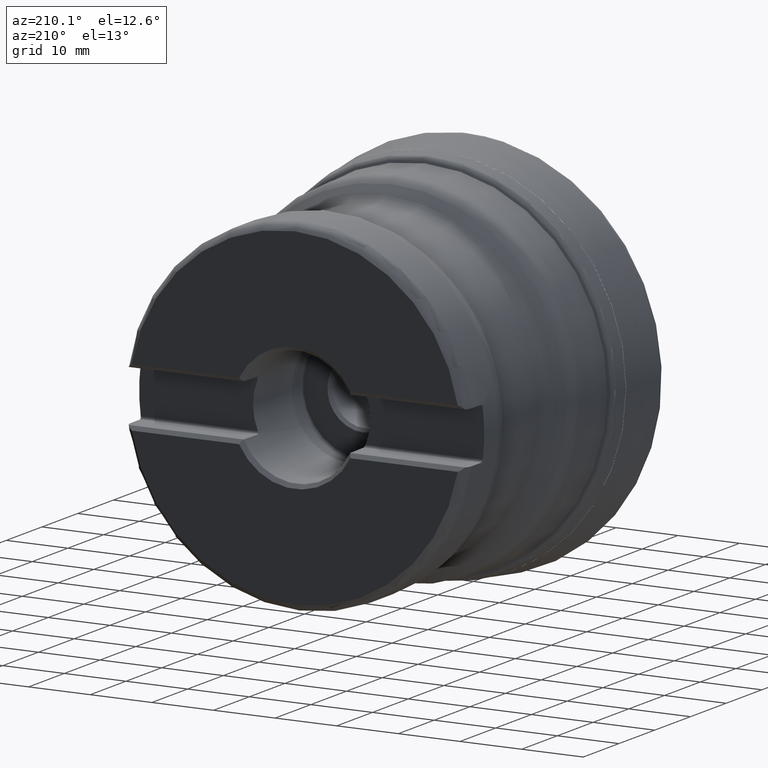
[diagram: clean part render]
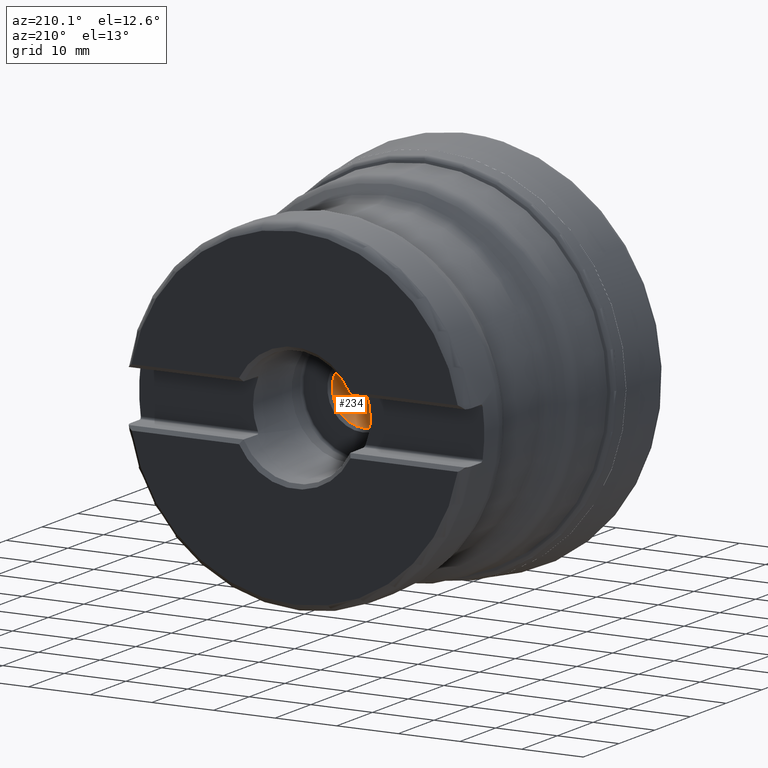
[diagram: same view with one face highlighted and labeled with its STEP entity id]
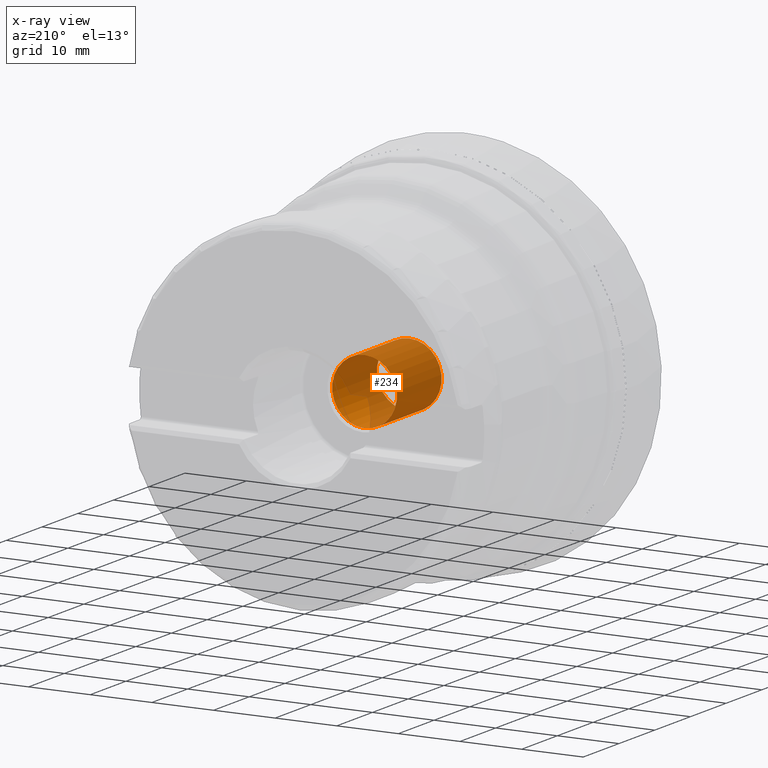
[diagram: x-ray of the same camera — body ghosted, the highlighted face saturated]
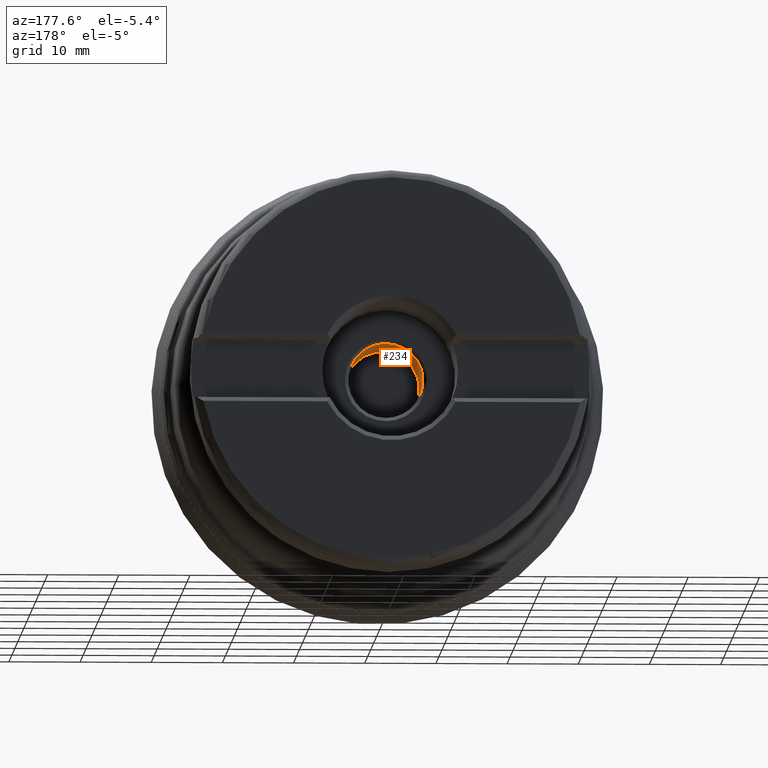
[diagram: same view with one face highlighted and labeled with its STEP entity id]
A machine part, auxiliary view. The second image highlights one B-rep face of the part: STEP entity #234.
The next image is the same camera in x-ray: the body ghosted, the highlighted face saturated — about 83% of this face is hidden behind the body in this view.
A second angle (auxiliary view) of the same face is appended — the face is thin or edge-on in the first view.
In plain terms, the highlighted cylindrical surface (bore or boss wall) has radius 5.25 mm, axis along (0, -1, 0).
Its self-contained STEP definition (entity closure, byte-faithful):
#234=ADVANCED_FACE('',(#415,#416),#293,.F.);
#293=CYLINDRICAL_SURFACE('',#1150,5.25);
#415=FACE_BOUND('',#523,.T.);
#416=FACE_BOUND('',#524,.T.);
#523=EDGE_LOOP('',(#721));
#524=EDGE_LOOP('',(#722));
#721=ORIENTED_EDGE('',*,*,#998,.T.);
#722=ORIENTED_EDGE('',*,*,#999,.T.);
#891=VERTEX_POINT('',#1838);
#892=VERTEX_POINT('',#1840);
#998=EDGE_CURVE('',#891,#891,#1067,.T.);
#999=EDGE_CURVE('',#892,#892,#1068,.T.);
#1067=CIRCLE('',#1148,5.25);
#1068=CIRCLE('',#1149,5.25);
#1148=AXIS2_PLACEMENT_3D('',#1837,#1320,#1321);
#1149=AXIS2_PLACEMENT_3D('',#1839,#1322,#1323);
#1150=AXIS2_PLACEMENT_3D('',#1841,#1324,#1325);
#1320=DIRECTION('',(0.,1.,0.));
#1321=DIRECTION('',(0.,0.,-1.));
#1322=DIRECTION('',(0.,-1.,0.));
#1323=DIRECTION('',(0.,0.,1.));
#1324=DIRECTION('',(0.,-1.,0.));
#1325=DIRECTION('',(0.,0.,-1.));
#1837=CARTESIAN_POINT('',(0.,30.45,0.));
#1838=CARTESIAN_POINT('',(0.,30.45,-5.25));
#1839=CARTESIAN_POINT('',(0.,17.95,0.));
#1840=CARTESIAN_POINT('',(0.,17.95,5.25));
#1841=CARTESIAN_POINT('',(0.,50.2,0.));